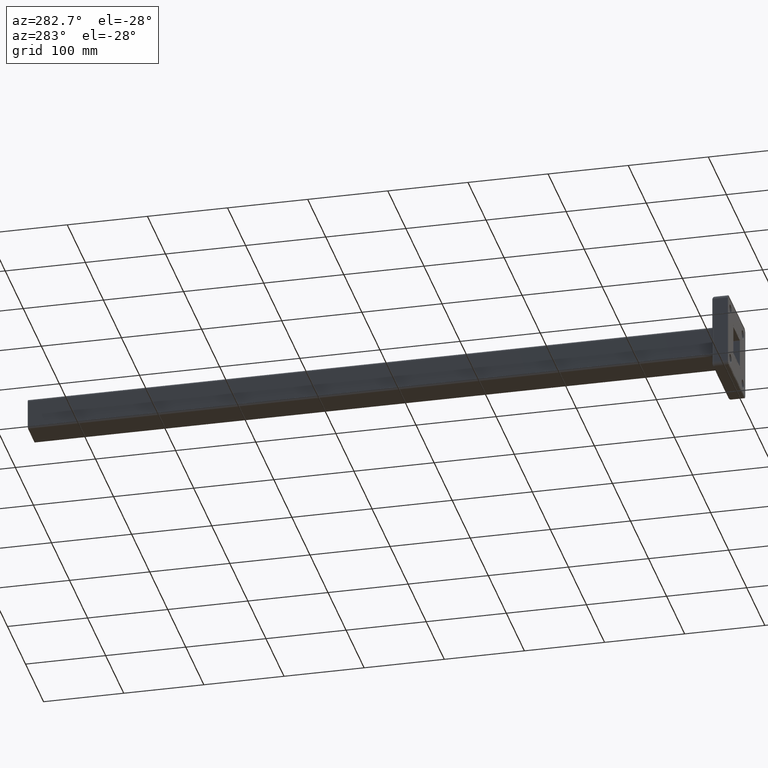
[diagram: clean part render]
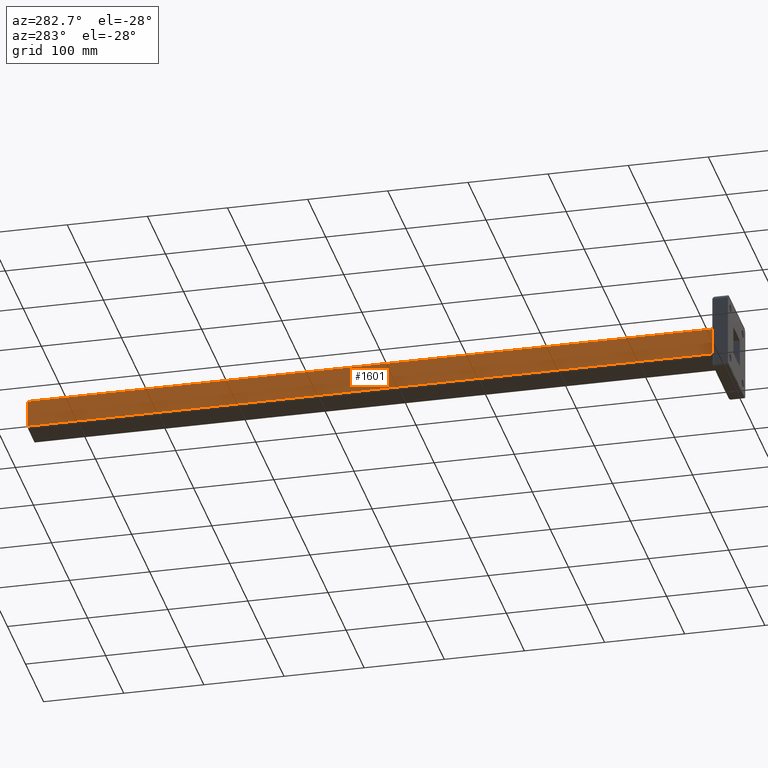
[diagram: same view with one face highlighted and labeled with its STEP entity id]
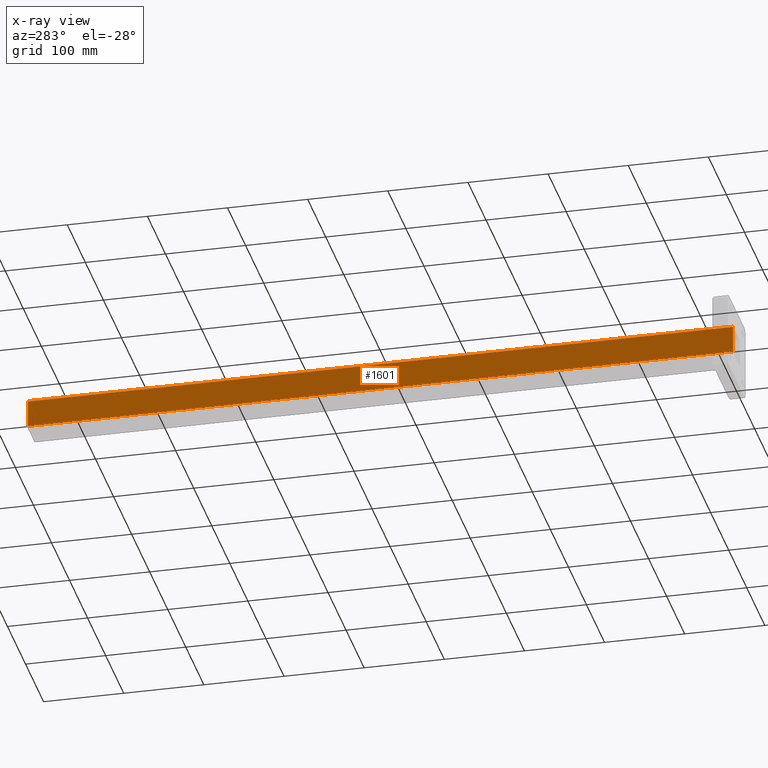
[diagram: x-ray of the same camera — body ghosted, the highlighted face saturated]
A machine part, auxiliary view. The second image highlights one B-rep face of the part: STEP entity #1601.
The next image is the same camera in x-ray: the body ghosted, the highlighted face saturated — about 0% of this face is hidden behind the body in this view.
In plain terms, the highlighted planar face has unit normal (1, 0, -0).
Its self-contained STEP definition (entity closure, byte-faithful):
#95 = LINE ( 'NONE', #2053, #180 ) ;
#180 = VECTOR ( 'NONE', #589, 1000.000000000000000 ) ;
#224 = CARTESIAN_POINT ( 'NONE',  ( -20.00000000000000400, 0.0000000000000000000, -20.00000000000000400 ) ) ;
#290 = ORIENTED_EDGE ( 'NONE', *, *, #2818, .T. ) ;
#316 = EDGE_CURVE ( 'NONE', #3132, #3489, #1447, .T. ) ;
#353 = VECTOR ( 'NONE', #2839, 1000.000000000000000 ) ;
#589 = DIRECTION ( 'NONE',  ( 1.734723475976807100E-016, 0.0000000000000000000, 1.000000000000000000 ) ) ;
#706 = ORIENTED_EDGE ( 'NONE', *, *, #2477, .T. ) ;
#906 = FACE_OUTER_BOUND ( 'NONE', #1374, .T. ) ;
#1034 = CARTESIAN_POINT ( 'NONE',  ( -19.99999999999999600, 0.0000000000000000000, 17.00000000000000000 ) ) ;
#1344 = DIRECTION ( 'NONE',  ( 1.734723475976807100E-016, 0.0000000000000000000, 1.000000000000000000 ) ) ;
#1374 = EDGE_LOOP ( 'NONE', ( #706, #1808, #2125, #290 ) ) ;
#1382 = EDGE_CURVE ( 'NONE', #1600, #3489, #95, .T. ) ;
#1447 = LINE ( 'NONE', #1625, #3439 ) ;
#1451 = CARTESIAN_POINT ( 'NONE',  ( -20.00000000000000400, 880.0000000000000000, -17.00000000000000400 ) ) ;
#1530 = DIRECTION ( 'NONE',  ( -1.734723475976807300E-016, 0.0000000000000000000, -1.000000000000000000 ) ) ;
#1593 = DIRECTION ( 'NONE',  ( -0.0000000000000000000, 1.000000000000000000, -0.0000000000000000000 ) ) ;
#1600 = VERTEX_POINT ( 'NONE', #3473 ) ;
#1601 = ADVANCED_FACE ( 'NONE', ( #906 ), #2070, .F. ) ;
#1625 = CARTESIAN_POINT ( 'NONE',  ( -19.99999999999999600, 880.0000000000000000, 17.00000000000000000 ) ) ;
#1652 = CARTESIAN_POINT ( 'NONE',  ( -20.00000000000000400, 0.0000000000000000000, -17.00000000000000400 ) ) ;
#1808 = ORIENTED_EDGE ( 'NONE', *, *, #316, .T. ) ;
#1850 = CARTESIAN_POINT ( 'NONE',  ( -19.99999999999999600, 880.0000000000000000, 17.00000000000000000 ) ) ;
#1860 = AXIS2_PLACEMENT_3D ( 'NONE', #2394, #2644, #1530 ) ;
#2053 = CARTESIAN_POINT ( 'NONE',  ( -20.00000000000000400, 880.0000000000000000, -20.00000000000000400 ) ) ;
#2070 = PLANE ( 'NONE',  #1860 ) ;
#2125 = ORIENTED_EDGE ( 'NONE', *, *, #1382, .F. ) ;
#2394 = CARTESIAN_POINT ( 'NONE',  ( -20.00000000000000400, 880.0000000000000000, -20.00000000000000400 ) ) ;
#2477 = EDGE_CURVE ( 'NONE', #3636, #3132, #2982, .T. ) ;
#2482 = LINE ( 'NONE', #1451, #353 ) ;
#2574 = VECTOR ( 'NONE', #1344, 1000.000000000000000 ) ;
#2644 = DIRECTION ( 'NONE',  ( 1.000000000000000000, 0.0000000000000000000, -1.734723475976807300E-016 ) ) ;
#2818 = EDGE_CURVE ( 'NONE', #1600, #3636, #2482, .T. ) ;
#2839 = DIRECTION ( 'NONE',  ( 0.0000000000000000000, -1.000000000000000000, 0.0000000000000000000 ) ) ;
#2982 = LINE ( 'NONE', #224, #2574 ) ;
#3132 = VERTEX_POINT ( 'NONE', #1034 ) ;
#3439 = VECTOR ( 'NONE', #1593, 1000.000000000000000 ) ;
#3473 = CARTESIAN_POINT ( 'NONE',  ( -20.00000000000000400, 880.0000000000000000, -17.00000000000000400 ) ) ;
#3489 = VERTEX_POINT ( 'NONE', #1850 ) ;
#3636 = VERTEX_POINT ( 'NONE', #1652 ) ;